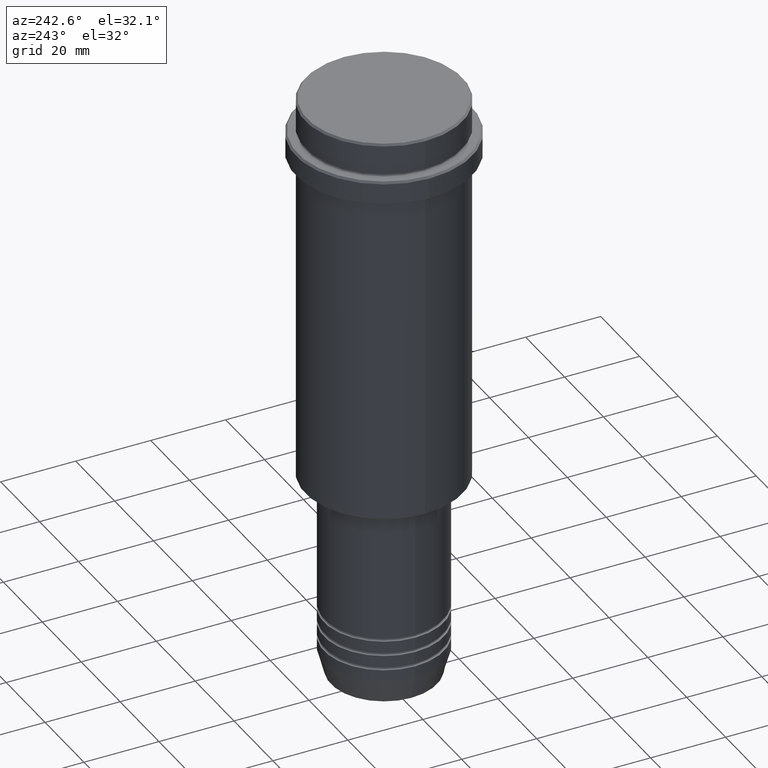
[diagram: clean part render]
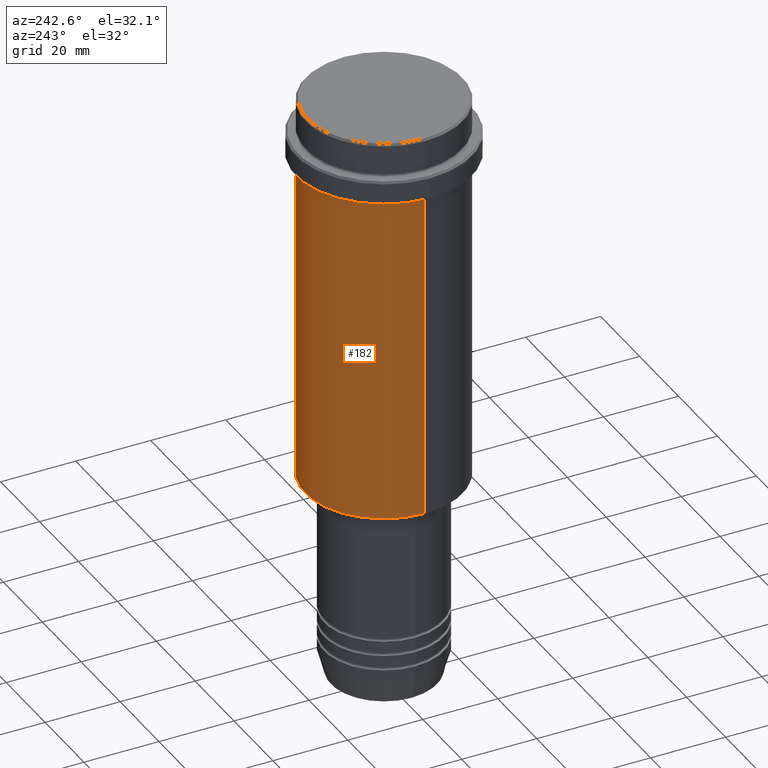
[diagram: same view with one face highlighted and labeled with its STEP entity id]
A machine part, auxiliary view. The second image highlights one B-rep face of the part: STEP entity #182.
In plain terms, the highlighted cylindrical surface (partial cylindrical patch) has radius 21 mm, axis along (-0, -0, 1).
Its self-contained STEP definition (entity closure, byte-faithful):
#20 = AXIS2_PLACEMENT_3D ( 'NONE', #108, #411, #226 ) ;
#85 = EDGE_LOOP ( 'NONE', ( #622, #865, #218, #892 ) ) ;
#105 = CARTESIAN_POINT ( 'NONE',  ( 21.00000000000000000, 0.000000000000000000, -104.4999999999999858 ) ) ;
#108 = CARTESIAN_POINT ( 'NONE',  ( 0.000000000000000000, 0.000000000000000000, -104.4999999999999858 ) ) ;
#182 = ADVANCED_FACE ( 'NONE', ( #952 ), #847, .T. ) ;
#203 = LINE ( 'NONE', #1281, #1288 ) ;
#210 = EDGE_CURVE ( 'NONE', #1149, #314, #453, .T. ) ;
#218 = ORIENTED_EDGE ( 'NONE', *, *, #1346, .F. ) ;
#226 = DIRECTION ( 'NONE',  ( -1.000000000000000000, 0.000000000000000000, 0.000000000000000000 ) ) ;
#269 = VERTEX_POINT ( 'NONE', #808 ) ;
#297 = LINE ( 'NONE', #1386, #366 ) ;
#300 = AXIS2_PLACEMENT_3D ( 'NONE', #313, #1392, #833 ) ;
#313 = CARTESIAN_POINT ( 'NONE',  ( 0.000000000000000000, 0.000000000000000000, 0.000000000000000000 ) ) ;
#314 = VERTEX_POINT ( 'NONE', #796 ) ;
#346 = AXIS2_PLACEMENT_3D ( 'NONE', #509, #605, #1369 ) ;
#354 = VERTEX_POINT ( 'NONE', #1122 ) ;
#366 = VECTOR ( 'NONE', #382, 1000.000000000000000 ) ;
#382 = DIRECTION ( 'NONE',  ( -0.000000000000000000, -0.000000000000000000, 1.000000000000000000 ) ) ;
#404 = EDGE_CURVE ( 'NONE', #1149, #354, #297, .T. ) ;
#411 = DIRECTION ( 'NONE',  ( -0.000000000000000000, -0.000000000000000000, 1.000000000000000000 ) ) ;
#453 = CIRCLE ( 'NONE', #20, 21.00000000000000000 ) ;
#509 = CARTESIAN_POINT ( 'NONE',  ( 0.000000000000000000, 0.000000000000000000, -16.00000000000000355 ) ) ;
#527 = DIRECTION ( 'NONE',  ( -0.000000000000000000, -0.000000000000000000, 1.000000000000000000 ) ) ;
#605 = DIRECTION ( 'NONE',  ( -0.000000000000000000, -0.000000000000000000, 1.000000000000000000 ) ) ;
#622 = ORIENTED_EDGE ( 'NONE', *, *, #210, .T. ) ;
#796 = CARTESIAN_POINT ( 'NONE',  ( -21.00000000000000000, 2.571758278209441661E-15, -104.4999999999999858 ) ) ;
#808 = CARTESIAN_POINT ( 'NONE',  ( -21.00000000000000000, 2.571758278209441661E-15, -16.00000000000000355 ) ) ;
#833 = DIRECTION ( 'NONE',  ( 1.000000000000000000, 0.000000000000000000, 0.000000000000000000 ) ) ;
#847 = CYLINDRICAL_SURFACE ( 'NONE', #300, 21.00000000000000000 ) ;
#865 = ORIENTED_EDGE ( 'NONE', *, *, #1412, .T. ) ;
#888 = CIRCLE ( 'NONE', #346, 21.00000000000000000 ) ;
#892 = ORIENTED_EDGE ( 'NONE', *, *, #404, .F. ) ;
#952 = FACE_OUTER_BOUND ( 'NONE', #85, .T. ) ;
#1122 = CARTESIAN_POINT ( 'NONE',  ( 21.00000000000000000, 0.000000000000000000, -16.00000000000000355 ) ) ;
#1149 = VERTEX_POINT ( 'NONE', #105 ) ;
#1281 = CARTESIAN_POINT ( 'NONE',  ( -21.00000000000000000, 2.571758278209441661E-15, 0.000000000000000000 ) ) ;
#1288 = VECTOR ( 'NONE', #527, 1000.000000000000000 ) ;
#1346 = EDGE_CURVE ( 'NONE', #354, #269, #888, .T. ) ;
#1369 = DIRECTION ( 'NONE',  ( 1.000000000000000000, 0.000000000000000000, 0.000000000000000000 ) ) ;
#1386 = CARTESIAN_POINT ( 'NONE',  ( 21.00000000000000000, 0.000000000000000000, 0.000000000000000000 ) ) ;
#1392 = DIRECTION ( 'NONE',  ( -0.000000000000000000, -0.000000000000000000, 1.000000000000000000 ) ) ;
#1412 = EDGE_CURVE ( 'NONE', #314, #269, #203, .T. ) ;